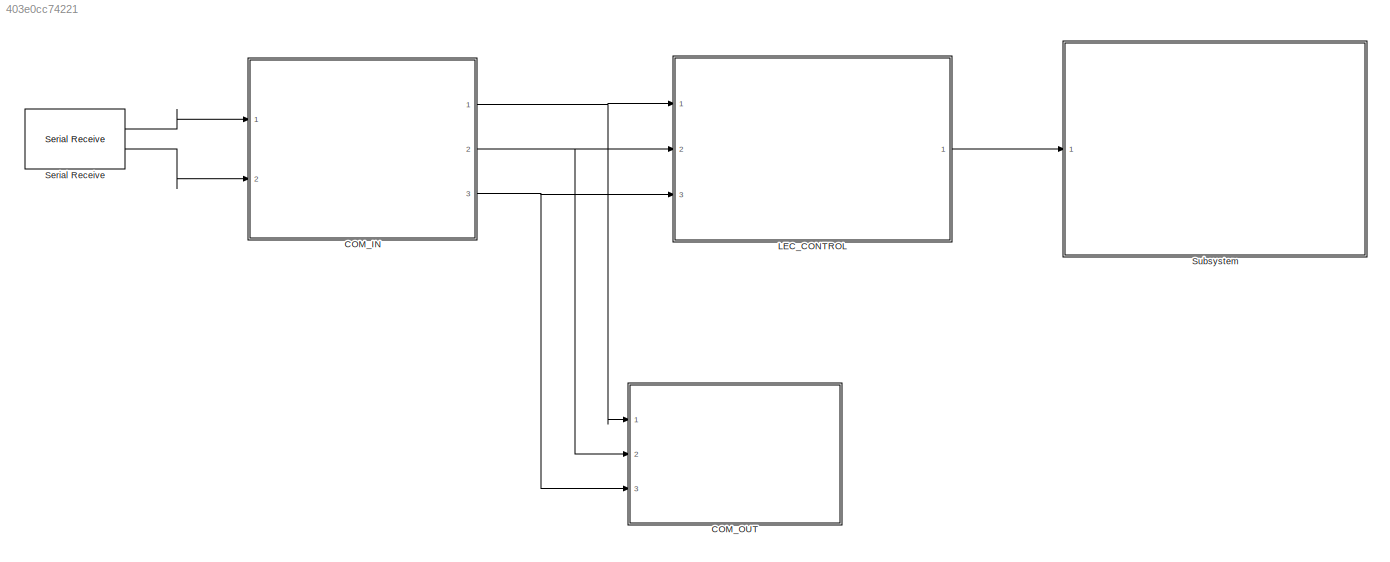
MODEL slx_403e0cc74221
KIND model
CONFIG AbsTol = auto
CONFIG EnableMultiTasking = on
CONFIG FixedStep = 1e-3
CONFIG MaxStep = auto
CONFIG MinStep = auto
CONFIG RelTol = 1e-3
CONFIG SampleTimeConstraint = Unconstrained
CONFIG Solver = FixedStepAuto
CONFIG SolverName = FixedStepAuto
CONFIG StartTime = 0.0
CONFIG StopTime = 10.0
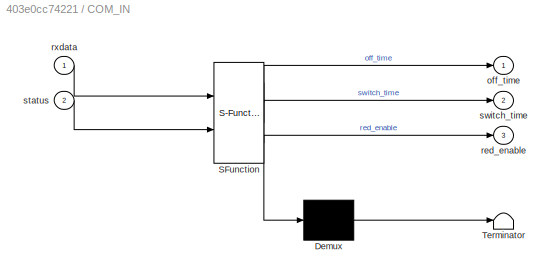
BLOCK [SubSystem] COM_IN
  ErrorFcn = Stateflow.Translate.translate
  PermitHierarchicalResolution = ExplicitOnly
  Ports = [2, 3]
  RequestExecContextInheritance = off
  SFBlockType = Chart
  TreatAsAtomicUnit = on
BLOCK [Demux] COM_IN/ Demux 
  Outputs = 1
  Ports = [1, 1]
BLOCK [S-Function] COM_IN/ SFunction 
  EnableBusSupport = off
  FunctionName = sf_sfun
  PortCounts = [2 4]
  Ports = [2, 4]
  SFcnIsStateOwnerBlock = off
  SFunctionDeploymentMode = off
  Tag = Stateflow S-Function 3
BLOCK [Terminator] COM_IN/ Terminator 
BLOCK [Outport] COM_IN/off_time
BLOCK [Outport] COM_IN/red_enable
  Port = 3
BLOCK [Inport] COM_IN/rxdata
BLOCK [Inport] COM_IN/status
  Port = 2
BLOCK [Outport] COM_IN/switch_time
  Port = 2
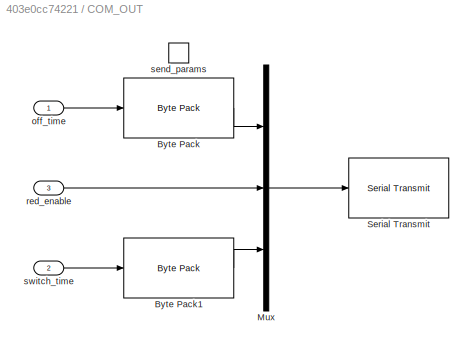
BLOCK [SubSystem] COM_OUT
  Ports = [3, 0, 0, 1]
  RequestExecContextInheritance = off
  TreatAsAtomicUnit = on
BLOCK [Reference] COM_OUT/Byte Pack  REF=etargetslib/Byte Pack
  Ports = [1, 1]
  SourceBlock = etargetslib/Byte Pack
  SourceProductBaseCode = ME
  SourceType = Byte pack
BLOCK [Reference] COM_OUT/Byte Pack1  REF=etargetslib/Byte Pack
  Ports = [1, 1]
  SourceBlock = etargetslib/Byte Pack
  SourceProductBaseCode = ME
  SourceType = Byte pack
BLOCK [Mux] COM_OUT/Mux
  DisplayOption = bar
  Inputs = 3
  Ports = [3, 1]
BLOCK [Reference] COM_OUT/Serial Transmit  REF=frdmk64flib/Serial Transmit
  Ports = [1]
  SourceBlock = frdmk64flib/Serial Transmit
  SourceProductBaseCode = EC_FRDM_K64F
  SourceType = freedomk64f.SCIWrite
BLOCK [Inport] COM_OUT/off_time
BLOCK [Inport] COM_OUT/red_enable
  Port = 3
BLOCK [TriggerPort] COM_OUT/send_params
  FunctionName = send_params
  IsSimulinkFunction = on
  Ports = []
  StatesWhenEnabling = held
  TriggerType = function-call
  VariantControl = (inherit)
BLOCK [Inport] COM_OUT/switch_time
  Port = 2
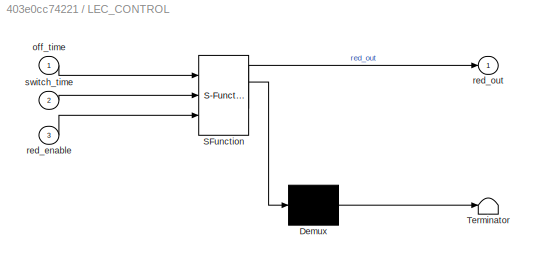
BLOCK [SubSystem] LEC_CONTROL
  ErrorFcn = Stateflow.Translate.translate
  PermitHierarchicalResolution = ExplicitOnly
  Ports = [3, 1]
  RequestExecContextInheritance = off
  SFBlockType = Chart
  TreatAsAtomicUnit = on
BLOCK [Demux] LEC_CONTROL/ Demux 
  Outputs = 1
  Ports = [1, 1]
BLOCK [S-Function] LEC_CONTROL/ SFunction 
  EnableBusSupport = off
  FunctionName = sf_sfun
  PortCounts = [3 2]
  Ports = [3, 2]
  SFcnIsStateOwnerBlock = off
  SFunctionDeploymentMode = off
  Tag = Stateflow S-Function 1
BLOCK [Terminator] LEC_CONTROL/ Terminator 
BLOCK [Inport] LEC_CONTROL/off_time
BLOCK [Inport] LEC_CONTROL/red_enable
  Port = 3
BLOCK [Outport] LEC_CONTROL/red_out
BLOCK [Inport] LEC_CONTROL/switch_time
  Port = 2
BLOCK [Reference] Serial Receive  REF=frdmk64flib/Serial Receive
  Ports = [0, 2]
  SourceBlock = frdmk64flib/Serial Receive
  SourceProductBaseCode = EC_FRDM_K64F
  SourceType = freedomk64f.SCIRead
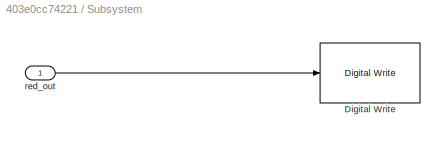
BLOCK [SubSystem] Subsystem
  Ports = [1]
  RequestExecContextInheritance = off
BLOCK [Reference] Subsystem/Digital Write  REF=frdmk64flib/Digital Write
  Ports = [1]
  SourceBlock = frdmk64flib/Digital Write
  SourceProductBaseCode = EC_FRDM_K64F
  SourceType = freedomk64f.DigitalWrite
BLOCK [Inport] Subsystem/red_out
NET COM_IN:1 -> COM_OUT:1, LEC_CONTROL:1
NET COM_IN:2 -> COM_OUT:2, LEC_CONTROL:2
NET COM_IN:3 -> COM_OUT:3, LEC_CONTROL:3
LINE COM_OUT/Byte Pack1:1 -> COM_OUT/Mux:3
LINE COM_OUT/Byte Pack:1 -> COM_OUT/Mux:1
LINE COM_OUT/Mux:1 -> COM_OUT/Serial Transmit:1
LINE COM_OUT/off_time:1 -> COM_OUT/Byte Pack:1
LINE COM_OUT/red_enable:1 -> COM_OUT/Mux:2
LINE COM_OUT/switch_time:1 -> COM_OUT/Byte Pack1:1
LINE LEC_CONTROL:1 -> Subsystem:1
LINE Serial Receive:1 -> COM_IN:1
LINE Serial Receive:2 -> COM_IN:2
LINE Subsystem/red_out:1 -> Subsystem/Digital Write:1
note: NET lines group one-source signal fan-out (src -> all destinations, sorted); 1:1 wires keep LINE
CHART LEC_CONTROL states=2 transitions=4
  STATE_LABEL 'OFF\nentry:\nred_out=0;'
  STATE_LABEL 'RED_ON\nentry:\nred_out=1;'
CHART COM_IN states=4 transitions=9
  STATE_LABEL "SET_PARAM\nentry:\nred_enable = rxdata(3); %maybe not 3,\noff_time = typecast(rxdata(6:9),'single');%maybe not 6 to 9\nswitch_time = typecast(rxdata(10:11),'uint16');\n"
  STATE_LABEL 'INITIAL\nentry:\nred_enable = 0;\noff_time =0.5; % seconds\nswitch_time = 200; % in msec'
  STATE_LABEL 'STANDBY'
  STATE_LABEL 'ECHO_PARAM\nentry:\nsend_params();'
CHART  states=0 transitions=0
CHART  states=0 transitions=0
